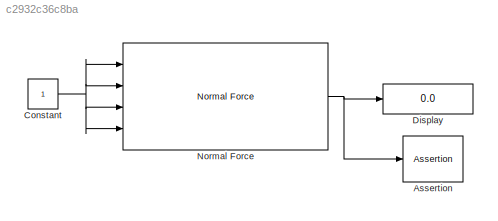
MODEL slx_c2932c36c8ba
KIND model
BLOCK [Assertion] Assertion
BLOCK [Constant] Constant
BLOCK [Display] Display
  Decimation = 1
  Ports = [1]
BLOCK [Reference] Normal Force  REF=rocket_angular_flight_library/Normal Force
  Ports = [4, 1]
  SourceBlock = rocket_angular_flight_library/Normal Force
  SourceType = SubSystem
NET Constant:1 -> Normal Force:1, Normal Force:2, Normal Force:3, Normal Force:4
NET Normal Force:1 -> Assertion:1, Display:1
note: NET lines group one-source signal fan-out (src -> all destinations, sorted); 1:1 wires keep LINE
